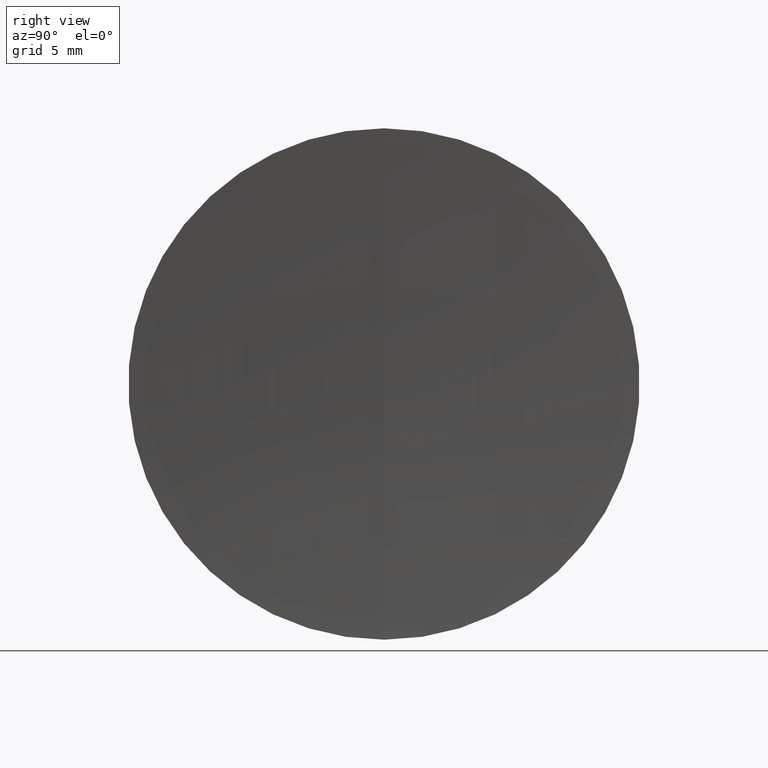
[diagram: clean part render]
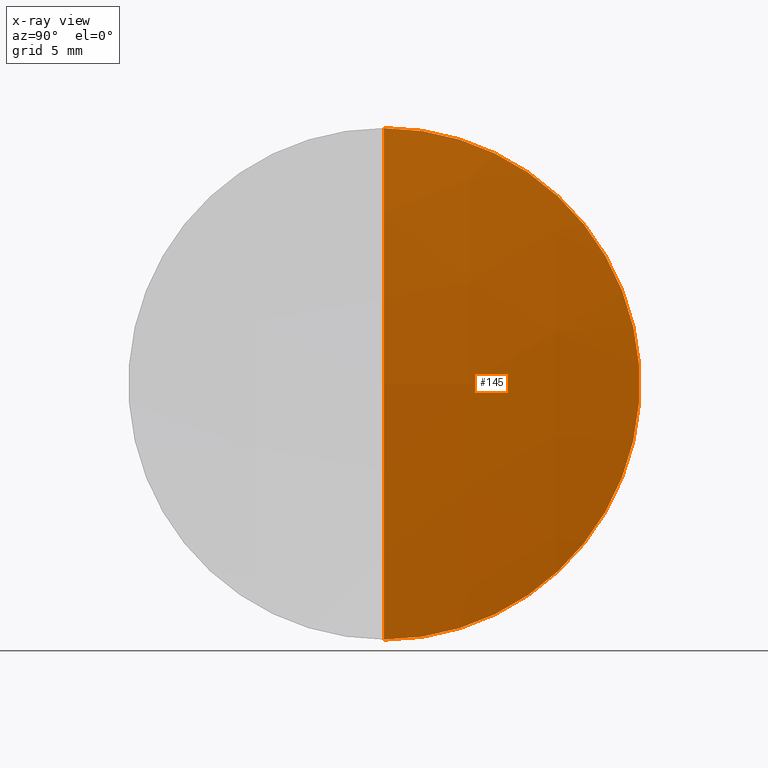
[diagram: x-ray — body ghosted, one internal face saturated and labeled with its STEP entity id]
A machine part, right view, then the same camera in x-ray: the body is ghosted and one INTERNAL B-rep face — a face not visible from any outside direction — is saturated and labeled: STEP entity #145.
In plain terms, the highlighted spherical surface has radius 106.41 mm.
Its self-contained STEP definition (entity closure, byte-faithful):
#2 = FACE_OUTER_BOUND ( 'NONE', #242, .T. ) ;
#12 = CARTESIAN_POINT ( 'NONE',  ( 369.3504997922063400, 0.0000000000000000000, -2.743593203835203200E-013 ) ) ;
#26 = VERTEX_POINT ( 'NONE', #304 ) ;
#33 = ORIENTED_EDGE ( 'NONE', *, *, #64, .T. ) ;
#43 = AXIS2_PLACEMENT_3D ( 'NONE', #275, #280, #66 ) ;
#47 = CARTESIAN_POINT ( 'NONE',  ( 368.5899110541722100, 1.555301434917104100E-015, -12.69999999999971900 ) ) ;
#51 = EDGE_CURVE ( 'NONE', #210, #26, #55, .T. ) ;
#55 = CIRCLE ( 'NONE', #88, 106.4100000000000100 ) ;
#64 = EDGE_CURVE ( 'NONE', #210, #277, #101, .T. ) ;
#66 = DIRECTION ( 'NONE',  ( 0.0000000000000000000, -1.224646799147353200E-016, 1.000000000000000000 ) ) ;
#82 = AXIS2_PLACEMENT_3D ( 'NONE', #153, #155, #156 ) ;
#88 = AXIS2_PLACEMENT_3D ( 'NONE', #120, #340, #143 ) ;
#101 = CIRCLE ( 'NONE', #43, 106.4100000000000100 ) ;
#118 = AXIS2_PLACEMENT_3D ( 'NONE', #342, #232, #284 ) ;
#120 = CARTESIAN_POINT ( 'NONE',  ( 262.9404997922063700, 0.0000000000000000000, -2.808750536783838100E-013 ) ) ;
#143 = DIRECTION ( 'NONE',  ( 0.0000000000000000000, 0.0000000000000000000, -1.000000000000000000 ) ) ;
#145 = ADVANCED_FACE ( 'NONE', ( #2 ), #263, .T. ) ;
#153 = CARTESIAN_POINT ( 'NONE',  ( 368.5899110541722100, 0.0000000000000000000, 0.0000000000000000000 ) ) ;
#155 = DIRECTION ( 'NONE',  ( -1.000000000000000000, -0.0000000000000000000, -0.0000000000000000000 ) ) ;
#156 = DIRECTION ( 'NONE',  ( 0.0000000000000000000, 0.0000000000000000000, 1.000000000000000000 ) ) ;
#166 = ORIENTED_EDGE ( 'NONE', *, *, #51, .F. ) ;
#210 = VERTEX_POINT ( 'NONE', #12 ) ;
#211 = CIRCLE ( 'NONE', #82, 12.69999999999971900 ) ;
#215 = ORIENTED_EDGE ( 'NONE', *, *, #325, .F. ) ;
#232 = DIRECTION ( 'NONE',  ( 0.0000000000000000000, 1.000000000000000000, 0.0000000000000000000 ) ) ;
#242 = EDGE_LOOP ( 'NONE', ( #166, #33, #215 ) ) ;
#263 = SPHERICAL_SURFACE ( 'NONE', #118, 106.4100000000000100 ) ;
#275 = CARTESIAN_POINT ( 'NONE',  ( 262.9404997922063700, 0.0000000000000000000, -2.808750536783838100E-013 ) ) ;
#277 = VERTEX_POINT ( 'NONE', #47 ) ;
#280 = DIRECTION ( 'NONE',  ( -0.0000000000000000000, 1.000000000000000000, 1.224646799147353200E-016 ) ) ;
#284 = DIRECTION ( 'NONE',  ( 0.0000000000000000000, 0.0000000000000000000, 1.000000000000000000 ) ) ;
#304 = CARTESIAN_POINT ( 'NONE',  ( 368.5899110541722100, 0.0000000000000000000, 12.69999999999971900 ) ) ;
#325 = EDGE_CURVE ( 'NONE', #26, #277, #211, .T. ) ;
#340 = DIRECTION ( 'NONE',  ( 0.0000000000000000000, -1.000000000000000000, 0.0000000000000000000 ) ) ;
#342 = CARTESIAN_POINT ( 'NONE',  ( 262.9404997922063700, 0.0000000000000000000, -2.808750536783838100E-013 ) ) ;